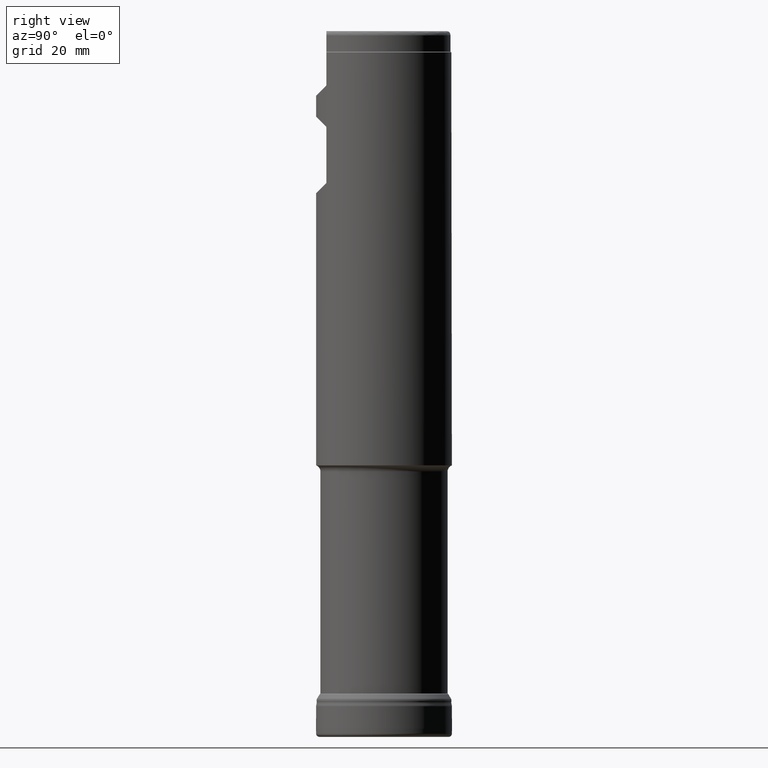
[diagram: clean part render]
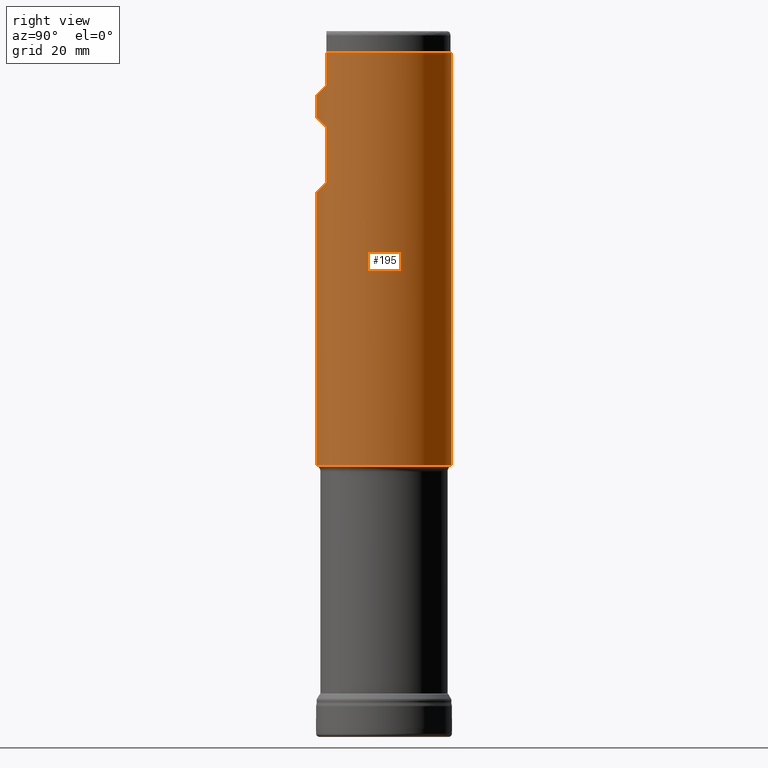
[diagram: same view with one face highlighted and labeled with its STEP entity id]
A machine part, right view. The second image highlights one B-rep face of the part: STEP entity #195.
In plain terms, the highlighted cylindrical surface (bore or boss wall) has radius 15.875 mm, axis along (0, 0, 1).
Its self-contained STEP definition (entity closure, byte-faithful):
#195=ADVANCED_FACE('',(#327,#328,#329),#258,.T.);
#258=CYLINDRICAL_SURFACE('',#1008,15.875);
#272=CIRCLE('',#1005,15.875);
#273=CIRCLE('',#1006,15.875);
#327=FACE_BOUND('',#432,.T.);
#328=FACE_BOUND('',#433,.T.);
#329=FACE_BOUND('',#434,.T.);
#432=EDGE_LOOP('',(#575,#576,#577,#578,#579,#580,#581,#582));
#433=EDGE_LOOP('',(#583));
#434=EDGE_LOOP('',(#584,#585,#586,#587,#588,#589));
#546=LINE('',#1595,#559);
#547=LINE('',#1627,#560);
#548=LINE('',#1645,#561);
#549=LINE('',#1649,#562);
#559=VECTOR('',#1105,1.);
#560=VECTOR('',#1108,1.);
#561=VECTOR('',#1111,1.);
#562=VECTOR('',#1114,1.);
#572=ELLIPSE('',#1003,22.4506403026729,15.875);
#573=ELLIPSE('',#1004,22.4506403026729,15.875);
#574=ELLIPSE('',#1007,22.4506403026729,15.875);
#575=ORIENTED_EDGE('',*,*,#840,.F.);
#576=ORIENTED_EDGE('',*,*,#841,.T.);
#577=ORIENTED_EDGE('',*,*,#842,.F.);
#578=ORIENTED_EDGE('',*,*,#843,.T.);
#579=ORIENTED_EDGE('',*,*,#844,.F.);
#580=ORIENTED_EDGE('',*,*,#845,.T.);
#581=ORIENTED_EDGE('',*,*,#846,.F.);
#582=ORIENTED_EDGE('',*,*,#847,.T.);
#583=ORIENTED_EDGE('',*,*,#848,.T.);
#584=ORIENTED_EDGE('',*,*,#849,.F.);
#585=ORIENTED_EDGE('',*,*,#850,.T.);
#586=ORIENTED_EDGE('',*,*,#851,.F.);
#587=ORIENTED_EDGE('',*,*,#852,.T.);
#588=ORIENTED_EDGE('',*,*,#853,.F.);
#589=ORIENTED_EDGE('',*,*,#854,.T.);
#761=VERTEX_POINT('',#1577);
#762=VERTEX_POINT('',#1578);
#763=VERTEX_POINT('',#1580);
#764=VERTEX_POINT('',#1594);
#765=VERTEX_POINT('',#1596);
#766=VERTEX_POINT('',#1610);
#767=VERTEX_POINT('',#1612);
#768=VERTEX_POINT('',#1626);
#769=VERTEX_POINT('',#1629);
#770=VERTEX_POINT('',#1643);
#771=VERTEX_POINT('',#1644);
#772=VERTEX_POINT('',#1646);
#773=VERTEX_POINT('',#1648);
#774=VERTEX_POINT('',#1650);
#775=VERTEX_POINT('',#1664);
#840=EDGE_CURVE('',#761,#762,#957,.T.);
#841=EDGE_CURVE('',#761,#763,#572,.T.);
#842=EDGE_CURVE('',#764,#763,#958,.T.);
#843=EDGE_CURVE('',#764,#765,#546,.T.);
#844=EDGE_CURVE('',#766,#765,#959,.T.);
#845=EDGE_CURVE('',#766,#767,#573,.T.);
#846=EDGE_CURVE('',#768,#767,#960,.T.);
#847=EDGE_CURVE('',#768,#762,#547,.T.);
#848=EDGE_CURVE('',#769,#769,#272,.T.);
#849=EDGE_CURVE('',#770,#771,#961,.T.);
#850=EDGE_CURVE('',#770,#772,#548,.T.);
#851=EDGE_CURVE('',#773,#772,#273,.T.);
#852=EDGE_CURVE('',#773,#774,#549,.T.);
#853=EDGE_CURVE('',#775,#774,#962,.T.);
#854=EDGE_CURVE('',#775,#771,#574,.T.);
#957=B_SPLINE_CURVE_WITH_KNOTS('',3,(#1564,#1565,#1566,#1567,#1568,#1569,
#1570,#1571,#1572,#1573,#1574,#1575,#1576),.UNSPECIFIED.,.F.,.F.,(4,3,3,
3,4),(0.,0.454533174547955,0.702164538890586,0.910432884672804,1.),
 .UNSPECIFIED.);
#958=B_SPLINE_CURVE_WITH_KNOTS('',3,(#1581,#1582,#1583,#1584,#1585,#1586,
#1587,#1588,#1589,#1590,#1591,#1592,#1593),.UNSPECIFIED.,.F.,.F.,(4,3,3,
3,4),(0.,0.199147216075939,0.44158363507035,0.807737111942973,1.),
 .UNSPECIFIED.);
#959=B_SPLINE_CURVE_WITH_KNOTS('',3,(#1597,#1598,#1599,#1600,#1601,#1602,
#1603,#1604,#1605,#1606,#1607,#1608,#1609),.UNSPECIFIED.,.F.,.F.,(4,3,3,
3,4),(0.,0.454533174547961,0.702164538890594,0.910432884672706,1.),
 .UNSPECIFIED.);
#960=B_SPLINE_CURVE_WITH_KNOTS('',3,(#1613,#1614,#1615,#1616,#1617,#1618,
#1619,#1620,#1621,#1622,#1623,#1624,#1625),.UNSPECIFIED.,.F.,.F.,(4,3,3,
3,4),(0.,0.199147216075931,0.441583635070346,0.807737111942889,1.),
 .UNSPECIFIED.);
#961=B_SPLINE_CURVE_WITH_KNOTS('',3,(#1630,#1631,#1632,#1633,#1634,#1635,
#1636,#1637,#1638,#1639,#1640,#1641,#1642),.UNSPECIFIED.,.F.,.F.,(4,3,3,
3,4),(0.,0.19914721607593,0.441583635070344,0.807737111942883,1.),
 .UNSPECIFIED.);
#962=B_SPLINE_CURVE_WITH_KNOTS('',3,(#1651,#1652,#1653,#1654,#1655,#1656,
#1657,#1658,#1659,#1660,#1661,#1662,#1663),.UNSPECIFIED.,.F.,.F.,(4,3,3,
3,4),(0.,0.454533174547963,0.702164538890596,0.910432884672706,1.),
 .UNSPECIFIED.);
#1003=AXIS2_PLACEMENT_3D('',#1579,#1103,#1104);
#1004=AXIS2_PLACEMENT_3D('',#1611,#1106,#1107);
#1005=AXIS2_PLACEMENT_3D('',#1628,#1109,#1110);
#1006=AXIS2_PLACEMENT_3D('',#1647,#1112,#1113);
#1007=AXIS2_PLACEMENT_3D('',#1665,#1115,#1116);
#1008=AXIS2_PLACEMENT_3D('',#1666,#1117,#1118);
#1103=DIRECTION('',(4.32978028117746E-17,0.707106781186548,0.707106781186547));
#1104=DIRECTION('',(-4.32978028117746E-17,-0.707106781186547,0.707106781186548));
#1105=DIRECTION('',(0.,-1.17145536458252E-15,-1.));
#1106=DIRECTION('',(-4.32978028117746E-17,0.707106781186546,-0.707106781186549));
#1107=DIRECTION('',(-4.32978028117747E-17,0.707106781186549,0.707106781186546));
#1108=DIRECTION('',(0.,1.17145536458252E-15,1.));
#1109=DIRECTION('',(0.,1.17145536458252E-15,1.));
#1110=DIRECTION('',(0.,-1.,8.74191357972564E-16));
#1111=DIRECTION('',(0.,1.17145536458252E-15,1.));
#1112=DIRECTION('',(0.,1.17145536458252E-15,1.));
#1113=DIRECTION('',(0.,-1.,1.74838271594513E-15));
#1114=DIRECTION('',(0.,-1.17145536458252E-15,-1.));
#1115=DIRECTION('',(-4.32978028117746E-17,0.707106781186547,-0.707106781186548));
#1116=DIRECTION('',(-4.32978028117746E-17,0.707106781186548,0.707106781186547));
#1117=DIRECTION('',(0.,1.17145536458252E-15,1.));
#1118=DIRECTION('',(0.,-1.,1.17145536458252E-15));
#1564=CARTESIAN_POINT('',(-8.22968557485394,-13.5752679656439,142.769192965644));
#1565=CARTESIAN_POINT('',(-8.26214403842777,-13.5555907887269,142.749515788727));
#1566=CARTESIAN_POINT('',(-8.29324127122087,-13.5365680579466,142.72516207342));
#1567=CARTESIAN_POINT('',(-8.31880056112416,-13.5208425116276,142.694709416179));
#1568=CARTESIAN_POINT('',(-8.33281049061592,-13.5122227966049,142.678017263056));
#1569=CARTESIAN_POINT('',(-8.34532550776588,-13.5044914646336,142.659155789535));
#1570=CARTESIAN_POINT('',(-8.35473859034977,-13.4986654187337,142.638500120755));
#1571=CARTESIAN_POINT('',(-8.36264707757229,-13.493770613111,142.621146072157));
#1572=CARTESIAN_POINT('',(-8.36846404353178,-13.4901610267412,142.602110432187));
#1573=CARTESIAN_POINT('',(-8.37114761202831,-13.4884955668758,142.582676158377));
#1574=CARTESIAN_POINT('',(-8.37231518540507,-13.4877709546286,142.574220648213));
#1575=CARTESIAN_POINT('',(-8.37291264972949,-13.4873999999998,142.565627374111));
#1576=CARTESIAN_POINT('',(-8.37291264972949,-13.4873999999998,142.557060931288));
#1577=CARTESIAN_POINT('',(-8.22968557485394,-13.5752679656439,142.769192965644));
#1578=CARTESIAN_POINT('',(-8.37291264972949,-13.4873999999998,142.557060931288));
#1579=CARTESIAN_POINT('',(0.,1.51344916512722E-13,129.193925));
#1580=CARTESIAN_POINT('',(8.22968557485394,-13.5752679656439,142.769192965644));
#1581=CARTESIAN_POINT('',(8.37291264972949,-13.4873999999998,142.557060931288));
#1582=CARTESIAN_POINT('',(8.37291264972949,-13.4873999999998,142.575881064048));
#1583=CARTESIAN_POINT('',(8.36992693774144,-13.4892545485355,142.594934859006));
#1584=CARTESIAN_POINT('',(8.36453687582312,-13.492596038309,142.61265431373));
#1585=CARTESIAN_POINT('',(8.35798061989729,-13.4966604929405,142.634207550372));
#1586=CARTESIAN_POINT('',(8.34778398154642,-13.5029748527275,142.654425584553));
#1587=CARTESIAN_POINT('',(8.3356800075406,-13.510442768906,142.672363542468));
#1588=CARTESIAN_POINT('',(8.31744673800206,-13.5216923410306,142.699385049741));
#1589=CARTESIAN_POINT('',(8.29449252987566,-13.53579847478,142.722249165019));
#1590=CARTESIAN_POINT('',(8.27002445290941,-13.5507313658074,142.741419162972));
#1591=CARTESIAN_POINT('',(8.25706862585496,-13.5586383195839,142.751569661454));
#1592=CARTESIAN_POINT('',(8.24354784478495,-13.5668642919062,142.760789291911));
#1593=CARTESIAN_POINT('',(8.22968557485581,-13.5752679656428,142.769192965647));
#1594=CARTESIAN_POINT('',(8.37291264972949,-13.4873999999998,142.557060931288));
#1595=CARTESIAN_POINT('',(8.37291264972949,-13.4874,1.57998870842703E-14));
#1596=CARTESIAN_POINT('',(8.37291264972949,-13.4873999999998,129.699189068712));
#1597=CARTESIAN_POINT('',(8.22968557485394,-13.5752679656439,129.487057034356));
#1598=CARTESIAN_POINT('',(8.26214403842777,-13.5555907887269,129.506734211273));
#1599=CARTESIAN_POINT('',(8.29324127122087,-13.5365680579467,129.53108792658));
#1600=CARTESIAN_POINT('',(8.31880056112416,-13.5208425116276,129.561540583821));
#1601=CARTESIAN_POINT('',(8.33281049061592,-13.5122227966049,129.578232736944));
#1602=CARTESIAN_POINT('',(8.34532550776588,-13.5044914646336,129.597094210465));
#1603=CARTESIAN_POINT('',(8.35473859034977,-13.4986654187337,129.617749879245));
#1604=CARTESIAN_POINT('',(8.36264707757229,-13.4937706131111,129.635103927843));
#1605=CARTESIAN_POINT('',(8.36846404353177,-13.4901610267412,129.654139567813));
#1606=CARTESIAN_POINT('',(8.37114761202831,-13.4884955668758,129.673573841623));
#1607=CARTESIAN_POINT('',(8.37231518540506,-13.4877709546286,129.682029351787));
#1608=CARTESIAN_POINT('',(8.37291264972949,-13.4873999999998,129.690622625889));
#1609=CARTESIAN_POINT('',(8.37291264972949,-13.4873999999998,129.699189068712));
#1610=CARTESIAN_POINT('',(8.22968557485394,-13.5752679656439,129.487057034356));
#1611=CARTESIAN_POINT('',(0.,1.67591128090899E-13,143.062325));
#1612=CARTESIAN_POINT('',(-8.22968557485394,-13.5752679656439,129.487057034356));
#1613=CARTESIAN_POINT('',(-8.37291264972949,-13.4873999999998,129.699189068712));
#1614=CARTESIAN_POINT('',(-8.37291264972949,-13.4873999999998,129.680368935952));
#1615=CARTESIAN_POINT('',(-8.36992693774144,-13.4892545485356,129.661315140994));
#1616=CARTESIAN_POINT('',(-8.36453687582313,-13.492596038309,129.64359568627));
#1617=CARTESIAN_POINT('',(-8.3579806198973,-13.4966604929405,129.622042449628));
#1618=CARTESIAN_POINT('',(-8.34778398154642,-13.5029748527275,129.601824415447));
#1619=CARTESIAN_POINT('',(-8.3356800075406,-13.510442768906,129.583886457532));
#1620=CARTESIAN_POINT('',(-8.31744673800206,-13.5216923410306,129.556864950259));
#1621=CARTESIAN_POINT('',(-8.29449252987568,-13.53579847478,129.534000834981));
#1622=CARTESIAN_POINT('',(-8.27002445290943,-13.5507313658074,129.514830837028));
#1623=CARTESIAN_POINT('',(-8.25706862585498,-13.5586383195839,129.504680338546));
#1624=CARTESIAN_POINT('',(-8.24354784478495,-13.5668642919062,129.495460708089));
#1625=CARTESIAN_POINT('',(-8.22968557485581,-13.5752679656429,129.487057034353));
#1626=CARTESIAN_POINT('',(-8.37291264972949,-13.4873999999998,129.699189068712));
#1627=CARTESIAN_POINT('',(-8.37291264972949,-13.4874,1.57998870842703E-14));
#1628=CARTESIAN_POINT('',(0.,7.43874156509903E-14,63.5));
#1629=CARTESIAN_POINT('',(0.,-15.8749999999999,63.5));
#1630=CARTESIAN_POINT('',(-8.37291264972949,-13.4873999999998,152.524264068712));
#1631=CARTESIAN_POINT('',(-8.37291264972949,-13.4873999999998,152.505443935952));
#1632=CARTESIAN_POINT('',(-8.36992693774144,-13.4892545485355,152.486390140994));
#1633=CARTESIAN_POINT('',(-8.36453687582313,-13.4925960383089,152.46867068627));
#1634=CARTESIAN_POINT('',(-8.3579806198973,-13.4966604929404,152.447117449628));
#1635=CARTESIAN_POINT('',(-8.34778398154642,-13.5029748527275,152.426899415447));
#1636=CARTESIAN_POINT('',(-8.3356800075406,-13.5104427689059,152.408961457532));
#1637=CARTESIAN_POINT('',(-8.31744673800206,-13.5216923410306,152.381939950259));
#1638=CARTESIAN_POINT('',(-8.29449252987568,-13.53579847478,152.359075834981));
#1639=CARTESIAN_POINT('',(-8.27002445290943,-13.5507313658073,152.339905837028));
#1640=CARTESIAN_POINT('',(-8.25706862585498,-13.5586383195839,152.329755338546));
#1641=CARTESIAN_POINT('',(-8.24354784478495,-13.5668642919062,152.320535708089));
#1642=CARTESIAN_POINT('',(-8.22968557485581,-13.5752679656428,152.312132034353));
#1643=CARTESIAN_POINT('',(-8.37291264972949,-13.4873999999998,152.524264068712));
#1644=CARTESIAN_POINT('',(-8.22968557485393,-13.5752679656438,152.312132034356));
#1645=CARTESIAN_POINT('',(-8.37291264972949,-13.4874,1.57998870842703E-14));
#1646=CARTESIAN_POINT('',(-8.37291264972948,-13.4873999999998,160.1));
#1647=CARTESIAN_POINT('',(0.,1.87550003869662E-13,160.1));
#1648=CARTESIAN_POINT('',(8.37291264972948,-13.4873999999998,160.1));
#1649=CARTESIAN_POINT('',(8.37291264972949,-13.4874,1.57998870842703E-14));
#1650=CARTESIAN_POINT('',(8.37291264972949,-13.4873999999998,152.524264068712));
#1651=CARTESIAN_POINT('',(8.22968557485393,-13.5752679656438,152.312132034356));
#1652=CARTESIAN_POINT('',(8.26214403842777,-13.5555907887269,152.331809211273));
#1653=CARTESIAN_POINT('',(8.29324127122087,-13.5365680579466,152.35616292658));
#1654=CARTESIAN_POINT('',(8.31880056112415,-13.5208425116276,152.386615583821));
#1655=CARTESIAN_POINT('',(8.33281049061592,-13.5122227966048,152.403307736944));
#1656=CARTESIAN_POINT('',(8.34532550776588,-13.5044914646336,152.422169210465));
#1657=CARTESIAN_POINT('',(8.35473859034976,-13.4986654187336,152.442824879245));
#1658=CARTESIAN_POINT('',(8.36264707757228,-13.493770613111,152.460178927843));
#1659=CARTESIAN_POINT('',(8.36846404353177,-13.4901610267412,152.479214567813));
#1660=CARTESIAN_POINT('',(8.37114761202831,-13.4884955668758,152.498648841623));
#1661=CARTESIAN_POINT('',(8.37231518540506,-13.4877709546285,152.507104351787));
#1662=CARTESIAN_POINT('',(8.37291264972949,-13.4873999999998,152.515697625889));
#1663=CARTESIAN_POINT('',(8.37291264972949,-13.4873999999998,152.524264068712));
#1664=CARTESIAN_POINT('',(8.22968557485393,-13.5752679656438,152.312132034356));
#1665=CARTESIAN_POINT('',(0.,1.94329684646647E-13,165.8874));
#1666=CARTESIAN_POINT('',(0.,0.,0.));